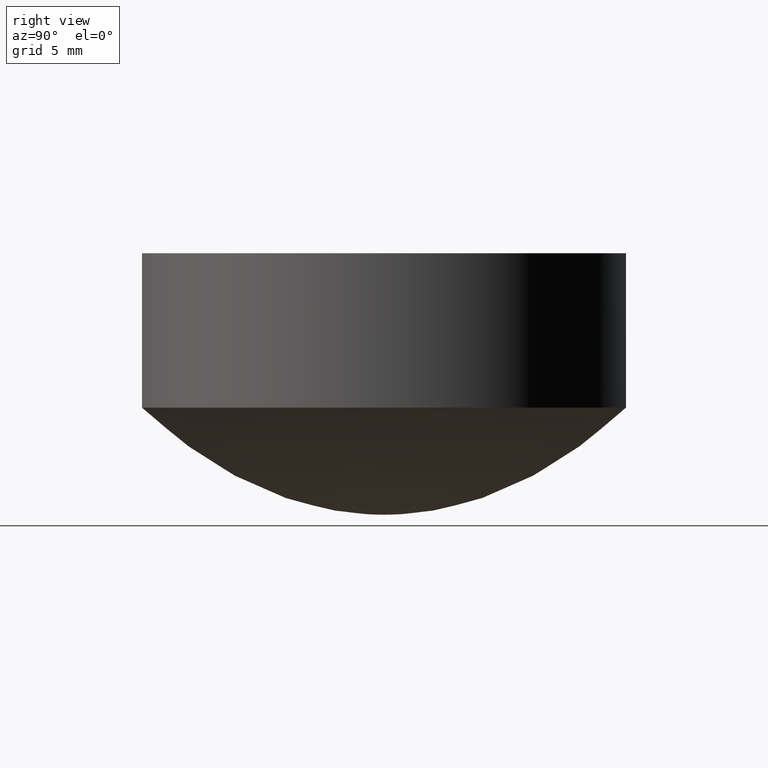
[diagram: clean part render]
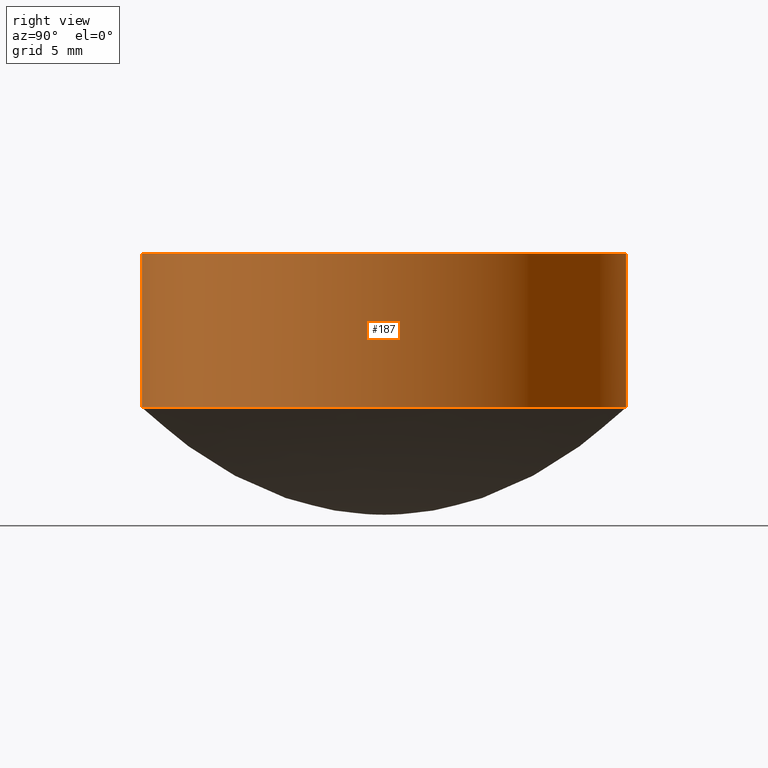
[diagram: same view with one face highlighted and labeled with its STEP entity id]
A machine part, right view. The second image highlights one B-rep face of the part: STEP entity #187.
In plain terms, the highlighted cylindrical surface (partial cylindrical patch) has radius 12.5 mm, axis along (0, 0, -1).
Its self-contained STEP definition (entity closure, byte-faithful):
#49 = VERTEX_POINT ( 'NONE', #497 ) ;
#54 = CARTESIAN_POINT ( 'NONE',  ( 0.000000000000000000, 12.50000000000000000, 5.532697925372699999 ) ) ;
#55 = CARTESIAN_POINT ( 'NONE',  ( 1.530808498934191521E-15, -12.50000000000000000, 14.17500000000000071 ) ) ;
#61 = ORIENTED_EDGE ( 'NONE', *, *, #83, .F. ) ;
#67 = VERTEX_POINT ( 'NONE', #485 ) ;
#83 = EDGE_CURVE ( 'NONE', #49, #885, #800, .T. ) ;
#132 = CIRCLE ( 'NONE', #452, 12.50000000000000000 ) ;
#162 = CARTESIAN_POINT ( 'NONE',  ( 0.000000000000000000, 0.000000000000000000, 13.50000000000000000 ) ) ;
#164 = CIRCLE ( 'NONE', #689, 12.50000000000000000 ) ;
#168 = EDGE_CURVE ( 'NONE', #67, #313, #411, .T. ) ;
#187 = ADVANCED_FACE ( 'NONE', ( #307 ), #560, .T. ) ;
#237 = DIRECTION ( 'NONE',  ( 0.000000000000000000, 0.000000000000000000, -1.000000000000000000 ) ) ;
#242 = DIRECTION ( 'NONE',  ( 0.000000000000000000, 0.000000000000000000, -1.000000000000000000 ) ) ;
#300 = DIRECTION ( 'NONE',  ( 0.000000000000000000, 1.000000000000000000, 0.000000000000000000 ) ) ;
#307 = FACE_OUTER_BOUND ( 'NONE', #803, .T. ) ;
#313 = VERTEX_POINT ( 'NONE', #980 ) ;
#358 = VECTOR ( 'NONE', #657, 1000.000000000000000 ) ;
#377 = VECTOR ( 'NONE', #242, 1000.000000000000000 ) ;
#411 = LINE ( 'NONE', #55, #377 ) ;
#452 = AXIS2_PLACEMENT_3D ( 'NONE', #490, #899, #300 ) ;
#485 = CARTESIAN_POINT ( 'NONE',  ( 1.530808498934191521E-15, -12.50000000000000000, 13.50000000000000000 ) ) ;
#490 = CARTESIAN_POINT ( 'NONE',  ( 0.000000000000000000, 0.000000000000000000, 5.532697925372699999 ) ) ;
#497 = CARTESIAN_POINT ( 'NONE',  ( 0.000000000000000000, 12.50000000000000000, 13.50000000000000000 ) ) ;
#560 = CYLINDRICAL_SURFACE ( 'NONE', #1072, 12.50000000000000000 ) ;
#581 = EDGE_CURVE ( 'NONE', #49, #67, #164, .T. ) ;
#639 = ORIENTED_EDGE ( 'NONE', *, *, #581, .T. ) ;
#657 = DIRECTION ( 'NONE',  ( 0.000000000000000000, 0.000000000000000000, -1.000000000000000000 ) ) ;
#660 = DIRECTION ( 'NONE',  ( 0.000000000000000000, 1.000000000000000000, 0.000000000000000000 ) ) ;
#689 = AXIS2_PLACEMENT_3D ( 'NONE', #162, #1079, #660 ) ;
#717 = ORIENTED_EDGE ( 'NONE', *, *, #883, .T. ) ;
#800 = LINE ( 'NONE', #1051, #358 ) ;
#803 = EDGE_LOOP ( 'NONE', ( #639, #814, #717, #61 ) ) ;
#814 = ORIENTED_EDGE ( 'NONE', *, *, #168, .T. ) ;
#883 = EDGE_CURVE ( 'NONE', #313, #885, #132, .T. ) ;
#885 = VERTEX_POINT ( 'NONE', #54 ) ;
#890 = CARTESIAN_POINT ( 'NONE',  ( 0.000000000000000000, 0.000000000000000000, 14.17500000000000071 ) ) ;
#899 = DIRECTION ( 'NONE',  ( 0.000000000000000000, 0.000000000000000000, 1.000000000000000000 ) ) ;
#980 = CARTESIAN_POINT ( 'NONE',  ( 1.530808498934191521E-15, -12.50000000000000000, 5.532697925372699999 ) ) ;
#1051 = CARTESIAN_POINT ( 'NONE',  ( 0.000000000000000000, 12.50000000000000000, 14.17500000000000071 ) ) ;
#1057 = DIRECTION ( 'NONE',  ( 0.000000000000000000, 1.000000000000000000, 0.000000000000000000 ) ) ;
#1072 = AXIS2_PLACEMENT_3D ( 'NONE', #890, #237, #1057 ) ;
#1079 = DIRECTION ( 'NONE',  ( 0.000000000000000000, 0.000000000000000000, -1.000000000000000000 ) ) ;